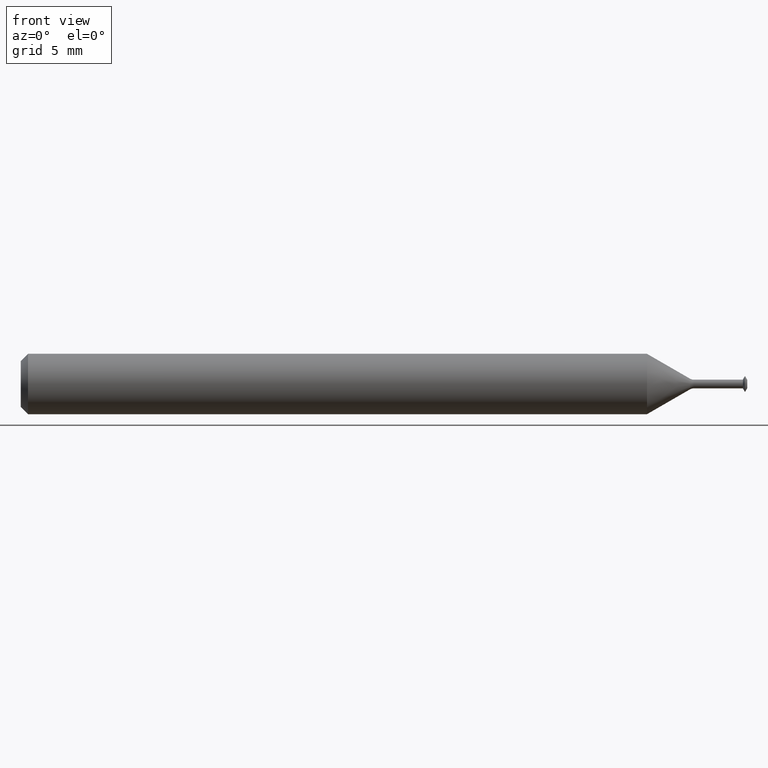
[diagram: clean part render]
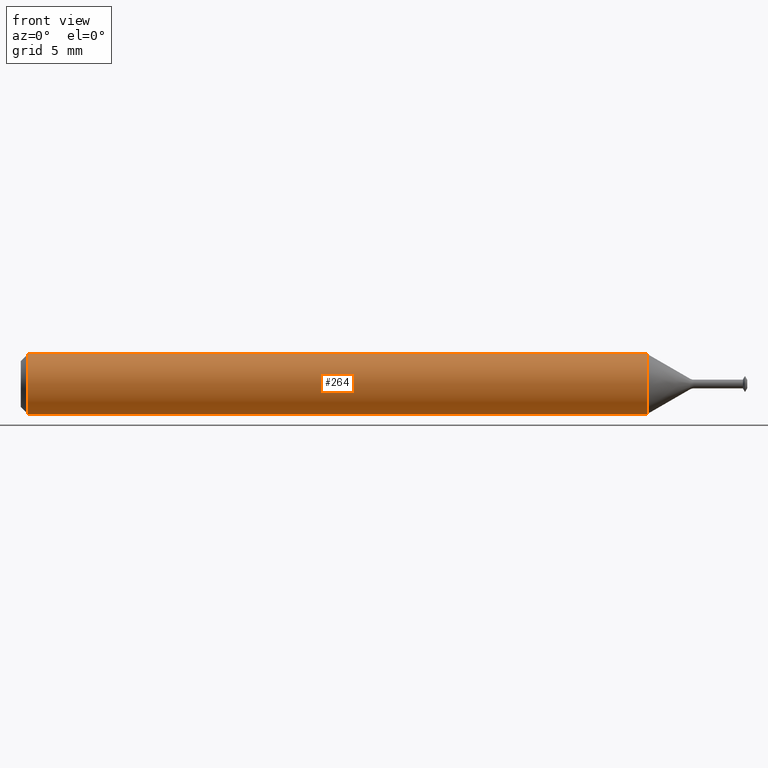
[diagram: same view with one face highlighted and labeled with its STEP entity id]
A machine part, front view. The second image highlights one B-rep face of the part: STEP entity #264.
In plain terms, the highlighted cylindrical surface (edge-blend (fillet) strip) has radius 1.5837 mm, axis along (-1, -0, -0).
Its self-contained STEP definition (entity closure, byte-faithful):
#1 = CARTESIAN_POINT ( 'NONE',  ( 1.292941102884447746, 0.0000000000000000000, 0.06235000000000000958 ) ) ;
#3 = DIRECTION ( 'NONE',  ( 0.0000000000000000000, 0.0000000000000000000, 1.000000000000000000 ) ) ;
#11 = DIRECTION ( 'NONE',  ( -1.000000000000000000, -0.0000000000000000000, -0.0000000000000000000 ) ) ;
#16 = LINE ( 'NONE', #220, #110 ) ;
#28 = DIRECTION ( 'NONE',  ( 0.0000000000000000000, 0.0000000000000000000, -1.000000000000000000 ) ) ;
#29 = VERTEX_POINT ( 'NONE', #104 ) ;
#40 = EDGE_CURVE ( 'NONE', #284, #297, #121, .T. ) ;
#42 = CYLINDRICAL_SURFACE ( 'NONE', #44, 0.06235000000000000264 ) ;
#44 = AXIS2_PLACEMENT_3D ( 'NONE', #79, #321, #3 ) ;
#50 = VECTOR ( 'NONE', #54, 39.37007874015748143 ) ;
#54 = DIRECTION ( 'NONE',  ( -1.000000000000000000, -0.0000000000000000000, -0.0000000000000000000 ) ) ;
#67 = CARTESIAN_POINT ( 'NONE',  ( 0.01499999999999996649, 0.0000000000000000000, 0.0000000000000000000 ) ) ;
#79 = CARTESIAN_POINT ( 'NONE',  ( 0.0000000000000000000, 0.0000000000000000000, 0.0000000000000000000 ) ) ;
#97 = EDGE_LOOP ( 'NONE', ( #113, #108, #257, #501 ) ) ;
#104 = CARTESIAN_POINT ( 'NONE',  ( 0.01499999999999996649, 7.635672792683746671E-18, -0.06235000000000000264 ) ) ;
#108 = ORIENTED_EDGE ( 'NONE', *, *, #392, .T. ) ;
#110 = VECTOR ( 'NONE', #11, 39.37007874015748143 ) ;
#113 = ORIENTED_EDGE ( 'NONE', *, *, #145, .F. ) ;
#121 = LINE ( 'NONE', #223, #50 ) ;
#145 = EDGE_CURVE ( 'NONE', #197, #29, #16, .T. ) ;
#193 = DIRECTION ( 'NONE',  ( 0.0000000000000000000, 0.0000000000000000000, 1.000000000000000000 ) ) ;
#197 = VERTEX_POINT ( 'NONE', #442 ) ;
#220 = CARTESIAN_POINT ( 'NONE',  ( 0.0000000000000000000, 7.635672792683746671E-18, -0.06235000000000000264 ) ) ;
#223 = CARTESIAN_POINT ( 'NONE',  ( 0.0000000000000000000, 0.0000000000000000000, 0.06235000000000000264 ) ) ;
#240 = DIRECTION ( 'NONE',  ( -1.000000000000000000, -0.0000000000000000000, -0.0000000000000000000 ) ) ;
#257 = ORIENTED_EDGE ( 'NONE', *, *, #40, .T. ) ;
#264 = ADVANCED_FACE ( 'NONE', ( #267 ), #42, .T. ) ;
#267 = FACE_OUTER_BOUND ( 'NONE', #97, .T. ) ;
#284 = VERTEX_POINT ( 'NONE', #1 ) ;
#294 = AXIS2_PLACEMENT_3D ( 'NONE', #496, #240, #193 ) ;
#297 = VERTEX_POINT ( 'NONE', #318 ) ;
#311 = DIRECTION ( 'NONE',  ( 1.000000000000000000, 0.0000000000000000000, 0.0000000000000000000 ) ) ;
#318 = CARTESIAN_POINT ( 'NONE',  ( 0.01499999999999996649, 0.0000000000000000000, 0.06235000000000000264 ) ) ;
#321 = DIRECTION ( 'NONE',  ( -1.000000000000000000, -0.0000000000000000000, -0.0000000000000000000 ) ) ;
#392 = EDGE_CURVE ( 'NONE', #197, #284, #464, .T. ) ;
#442 = CARTESIAN_POINT ( 'NONE',  ( 1.292941102884447746, 7.635672792683748212E-18, -0.06235000000000000958 ) ) ;
#448 = EDGE_CURVE ( 'NONE', #297, #29, #500, .T. ) ;
#463 = AXIS2_PLACEMENT_3D ( 'NONE', #67, #311, #28 ) ;
#464 = CIRCLE ( 'NONE', #294, 0.06235000000000000264 ) ;
#496 = CARTESIAN_POINT ( 'NONE',  ( 1.292941102884447746, 0.0000000000000000000, 0.0000000000000000000 ) ) ;
#500 = CIRCLE ( 'NONE', #463, 0.06235000000000000264 ) ;
#501 = ORIENTED_EDGE ( 'NONE', *, *, #448, .T. ) ;